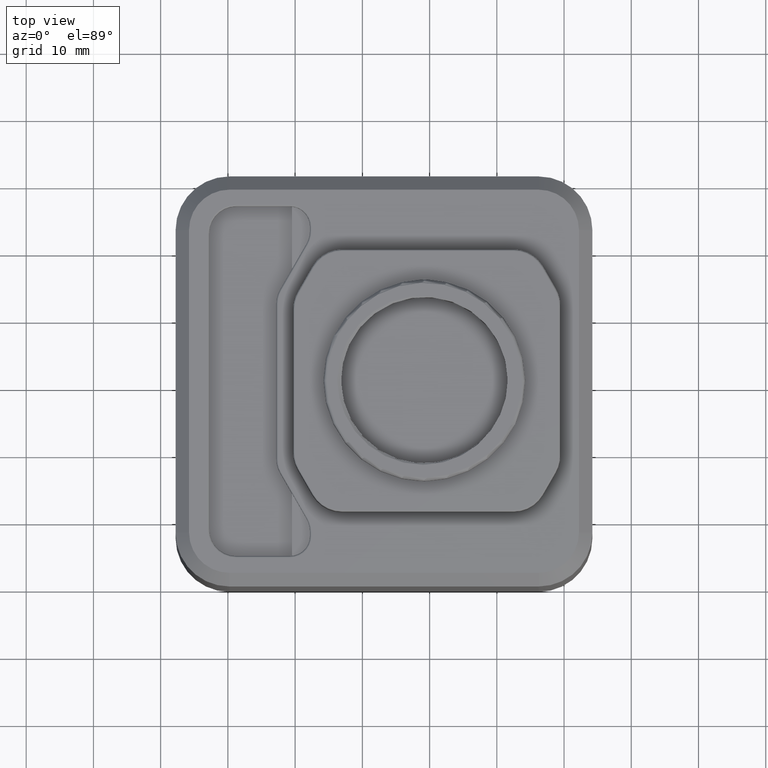
[diagram: clean part render]
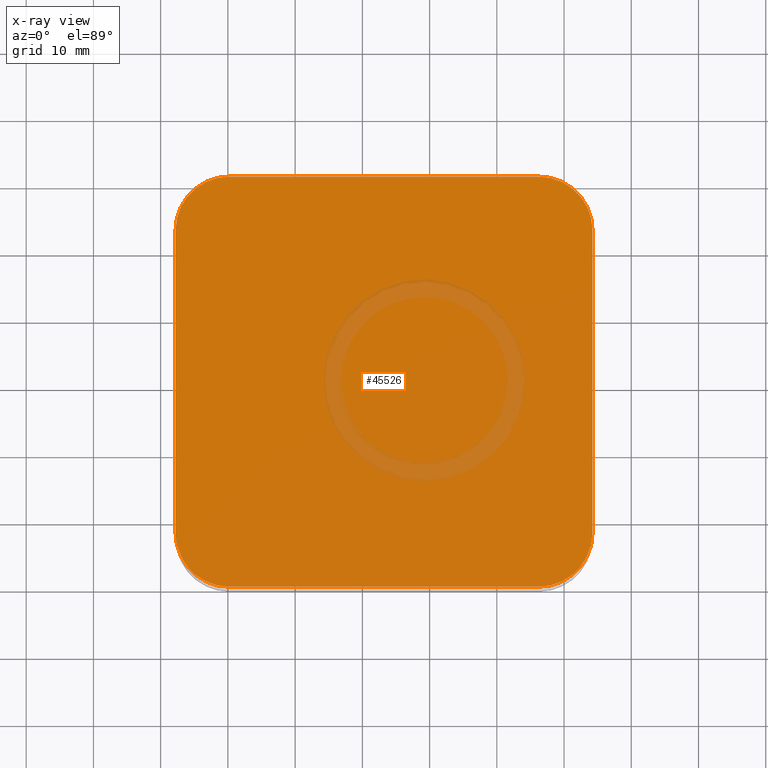
[diagram: x-ray — body ghosted, one internal face saturated and labeled with its STEP entity id]
A machine part, top view, then the same camera in x-ray: the body is ghosted and one INTERNAL B-rep face — a face not visible from any outside direction — is saturated and labeled: STEP entity #45526.
In plain terms, the highlighted planar face has unit normal (0, 0, -1).
Its self-contained STEP definition (entity closure, byte-faithful):
#219 = CARTESIAN_POINT ( 'NONE',  ( -17.78113167305999909, 42.86178579707100056, 30.58307532111199833 ) ) ;
#1055 = CARTESIAN_POINT ( 'NONE',  ( -9.781131673060002640, 50.86178579707100056, 30.58307532111199833 ) ) ;
#1331 = EDGE_LOOP ( 'NONE', ( #43857, #59852, #12479, #71655, #65683, #43655, #19180, #41755 ) ) ;
#2948 = CARTESIAN_POINT ( 'NONE',  ( -9.781131673060002640, 42.86178579707100056, 30.58307532111199833 ) ) ;
#3782 = CARTESIAN_POINT ( 'NONE',  ( -9.781131673060002640, -2.138214202928999441, 30.58307532111199833 ) ) ;
#5741 = CARTESIAN_POINT ( 'NONE',  ( -9.781131673060002640, -10.13821420292899944, 30.58307532111199833 ) ) ;
#5944 = CARTESIAN_POINT ( 'NONE',  ( 36.21886832694000447, 50.86178579707100056, 30.58307532111199833 ) ) ;
#7010 = FACE_OUTER_BOUND ( 'NONE', #1331, .T. ) ;
#8102 = DIRECTION ( 'NONE',  ( 0.000000000000000000, -1.000000000000000000, 0.000000000000000000 ) ) ;
#12479 = ORIENTED_EDGE ( 'NONE', *, *, #29270, .T. ) ;
#14423 = DIRECTION ( 'NONE',  ( 0.000000000000000000, 0.000000000000000000, -1.000000000000000000 ) ) ;
#14855 = VERTEX_POINT ( 'NONE', #72237 ) ;
#15678 = DIRECTION ( 'NONE',  ( 1.000000000000000000, 0.000000000000000000, 0.000000000000000000 ) ) ;
#16404 = VERTEX_POINT ( 'NONE', #5944 ) ;
#18782 = DIRECTION ( 'NONE',  ( -1.000000000000000000, 0.000000000000000000, 0.000000000000000000 ) ) ;
#19180 = ORIENTED_EDGE ( 'NONE', *, *, #41129, .T. ) ;
#20363 = CIRCLE ( 'NONE', #27420, 8.000000000000000000 ) ;
#20810 = DIRECTION ( 'NONE',  ( -1.000000000000000000, 0.000000000000000000, 0.000000000000000000 ) ) ;
#21551 = CIRCLE ( 'NONE', #62912, 8.000000000000000000 ) ;
#22707 = DIRECTION ( 'NONE',  ( 0.000000000000000000, -1.000000000000000000, 0.000000000000000000 ) ) ;
#23127 = VECTOR ( 'NONE', #52742, 1000.000000000000000 ) ;
#23212 = CARTESIAN_POINT ( 'NONE',  ( 44.21886832693999736, -2.138214202928999441, 30.58307532111199833 ) ) ;
#23602 = EDGE_CURVE ( 'NONE', #35652, #60855, #35725, .T. ) ;
#24447 = CARTESIAN_POINT ( 'NONE',  ( 44.21886832693999736, -2.138214202928999441, 30.58307532111199833 ) ) ;
#26387 = CARTESIAN_POINT ( 'NONE',  ( -9.781131673060002640, 50.86178579707100056, 30.58307532111199833 ) ) ;
#27420 = AXIS2_PLACEMENT_3D ( 'NONE', #69459, #47244, #18782 ) ;
#28087 = VECTOR ( 'NONE', #22707, 1000.000000000000000 ) ;
#28273 = LINE ( 'NONE', #24447, #28087 ) ;
#29270 = EDGE_CURVE ( 'NONE', #48028, #14855, #21551, .T. ) ;
#29340 = EDGE_CURVE ( 'NONE', #16404, #66056, #20363, .T. ) ;
#29626 = VECTOR ( 'NONE', #72948, 1000.000000000000000 ) ;
#31434 = AXIS2_PLACEMENT_3D ( 'NONE', #47296, #69878, #8102 ) ;
#32973 = CARTESIAN_POINT ( 'NONE',  ( -9.781131673060002640, -10.13821420292899944, 30.58307532111199833 ) ) ;
#35652 = VERTEX_POINT ( 'NONE', #41084 ) ;
#35725 = LINE ( 'NONE', #58295, #23127 ) ;
#41084 = CARTESIAN_POINT ( 'NONE',  ( -17.78113167305999909, -2.138214202928999441, 30.58307532111199833 ) ) ;
#41129 = EDGE_CURVE ( 'NONE', #60855, #64515, #47652, .T. ) ;
#41755 = ORIENTED_EDGE ( 'NONE', *, *, #48640, .T. ) ;
#43655 = ORIENTED_EDGE ( 'NONE', *, *, #23602, .T. ) ;
#43857 = ORIENTED_EDGE ( 'NONE', *, *, #29340, .T. ) ;
#45053 = DIRECTION ( 'NONE',  ( 0.000000000000000000, 0.000000000000000000, -1.000000000000000000 ) ) ;
#45526 = ADVANCED_FACE ( 'NONE', ( #7010 ), #46937, .T. ) ;
#46937 = PLANE ( 'NONE',  #31434 ) ;
#47223 = VERTEX_POINT ( 'NONE', #5741 ) ;
#47244 = DIRECTION ( 'NONE',  ( 0.000000000000000000, 0.000000000000000000, -1.000000000000000000 ) ) ;
#47296 = CARTESIAN_POINT ( 'NONE',  ( -9.781131673060002640, -2.138214202928999441, 30.58307532111199833 ) ) ;
#47652 = CIRCLE ( 'NONE', #61876, 8.000000000000000000 ) ;
#48028 = VERTEX_POINT ( 'NONE', #23212 ) ;
#48581 = LINE ( 'NONE', #26387, #60154 ) ;
#48640 = EDGE_CURVE ( 'NONE', #64515, #16404, #48581, .T. ) ;
#50360 = LINE ( 'NONE', #32973, #29626 ) ;
#52742 = DIRECTION ( 'NONE',  ( 0.000000000000000000, 1.000000000000000000, 0.000000000000000000 ) ) ;
#55126 = EDGE_CURVE ( 'NONE', #47223, #35652, #55609, .T. ) ;
#55180 = CARTESIAN_POINT ( 'NONE',  ( 44.21886832693999736, 42.86178579707100056, 30.58307532111199833 ) ) ;
#55288 = EDGE_CURVE ( 'NONE', #14855, #47223, #50360, .T. ) ;
#55609 = CIRCLE ( 'NONE', #63897, 8.000000000000000000 ) ;
#58295 = CARTESIAN_POINT ( 'NONE',  ( -17.78113167305999909, -2.138214202928999441, 30.58307532111199833 ) ) ;
#59852 = ORIENTED_EDGE ( 'NONE', *, *, #67287, .T. ) ;
#60154 = VECTOR ( 'NONE', #15678, 1000.000000000000000 ) ;
#60855 = VERTEX_POINT ( 'NONE', #219 ) ;
#61876 = AXIS2_PLACEMENT_3D ( 'NONE', #2948, #14423, #72082 ) ;
#62438 = DIRECTION ( 'NONE',  ( -1.000000000000000000, 0.000000000000000000, 0.000000000000000000 ) ) ;
#62912 = AXIS2_PLACEMENT_3D ( 'NONE', #73184, #45053, #62438 ) ;
#63897 = AXIS2_PLACEMENT_3D ( 'NONE', #3782, #71473, #20810 ) ;
#64515 = VERTEX_POINT ( 'NONE', #1055 ) ;
#65683 = ORIENTED_EDGE ( 'NONE', *, *, #55126, .T. ) ;
#66056 = VERTEX_POINT ( 'NONE', #55180 ) ;
#67287 = EDGE_CURVE ( 'NONE', #66056, #48028, #28273, .T. ) ;
#69459 = CARTESIAN_POINT ( 'NONE',  ( 36.21886832694000447, 42.86178579707100056, 30.58307532111199833 ) ) ;
#69878 = DIRECTION ( 'NONE',  ( 0.000000000000000000, 0.000000000000000000, -1.000000000000000000 ) ) ;
#71473 = DIRECTION ( 'NONE',  ( 0.000000000000000000, 0.000000000000000000, -1.000000000000000000 ) ) ;
#71655 = ORIENTED_EDGE ( 'NONE', *, *, #55288, .T. ) ;
#72082 = DIRECTION ( 'NONE',  ( -1.000000000000000000, 0.000000000000000000, 0.000000000000000000 ) ) ;
#72237 = CARTESIAN_POINT ( 'NONE',  ( 36.21886832694000447, -10.13821420292899944, 30.58307532111199833 ) ) ;
#72948 = DIRECTION ( 'NONE',  ( -1.000000000000000000, 0.000000000000000000, 0.000000000000000000 ) ) ;
#73184 = CARTESIAN_POINT ( 'NONE',  ( 36.21886832694000447, -2.138214202928999441, 30.58307532111199833 ) ) ;